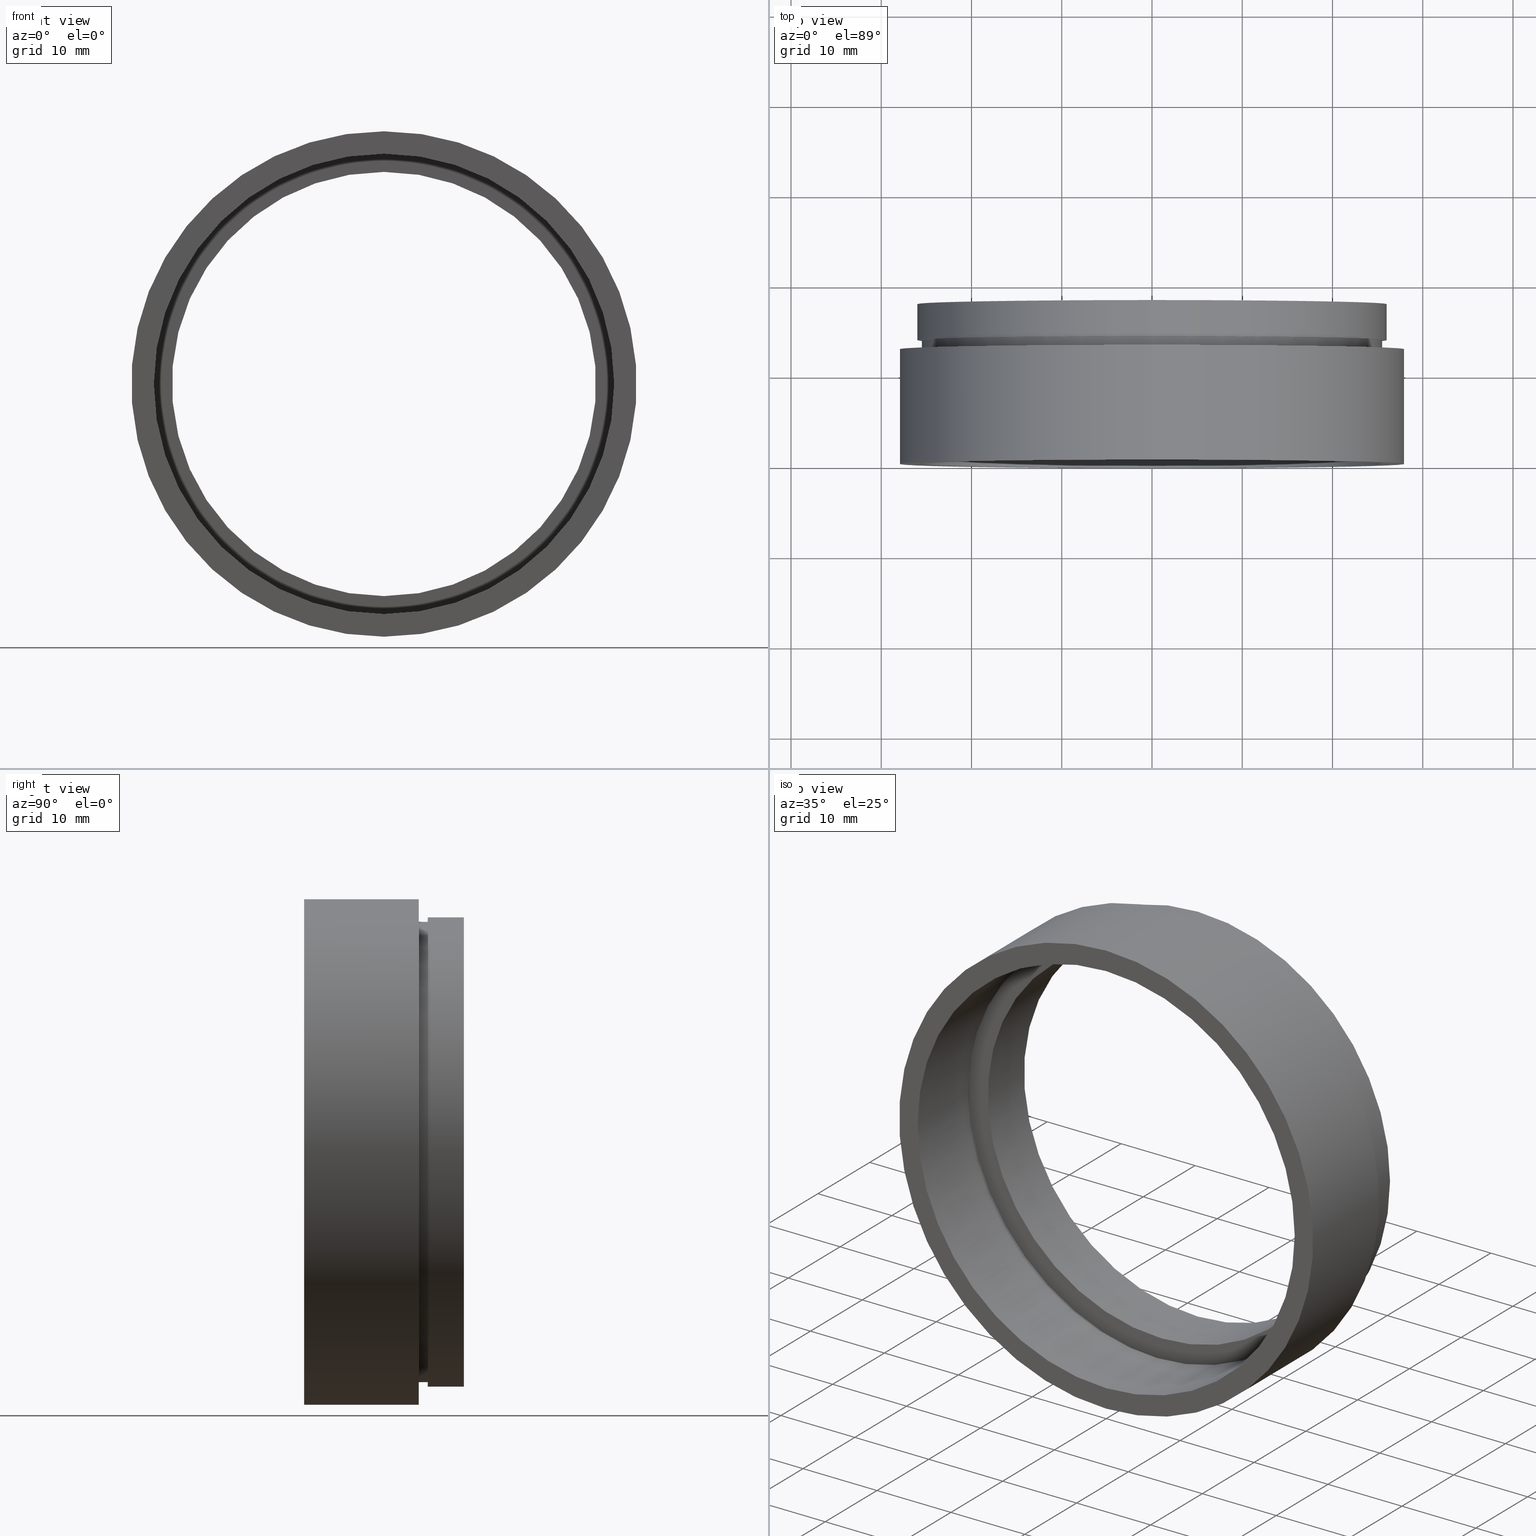
[diagram: canonical four-view strip — front | top / right | iso, engineering-drawing reading convention]
A machine part, canonical four-view strip (front | top / right | iso — engineering-drawing reading convention). The complete STEP part file that produces these views, byte-faithful:
ISO-10303-21;
HEADER;
FILE_DESCRIPTION (( 'STEP AP214' ),
    '1' );
FILE_NAME ('503004.STEP',
    '2019-09-04T05:28:14',
    ( '' ),
    ( '' ),
    'SwSTEP 2.0',
    'SolidWorks 2016',
    '' );
FILE_SCHEMA (( 'AUTOMOTIVE_DESIGN' ));
ENDSEC;

DATA;
#1 = DIRECTION ( 'NONE',  ( -0.0000000000000000000, 1.000000000000000000, -0.0000000000000000000 ) ) ;
#2 = EDGE_LOOP ( 'NONE', ( #331, #401 ) ) ;
#3 = EDGE_LOOP ( 'NONE', ( #9, #328, #159, #293 ) ) ;
#4 = PRODUCT_CONTEXT ( 'NONE', #482, 'mechanical' ) ;
#5 =( NAMED_UNIT ( * ) SI_UNIT ( $, .STERADIAN. ) SOLID_ANGLE_UNIT ( ) );
#6 = EDGE_CURVE ( 'NONE', #441, #82, #513, .T. ) ;
#7 = DIRECTION ( 'NONE',  ( -0.0000000000000000000, 1.000000000000000000, -0.0000000000000000000 ) ) ;
#8 = CARTESIAN_POINT ( 'NONE',  ( 26.00000000000002100, 13.69999999999998700, 0.0000000000000000000 ) ) ;
#9 = ORIENTED_EDGE ( 'NONE', *, *, #363, .F. ) ;
#10 = LINE ( 'NONE', #45, #336 ) ;
#11 = PLANE ( 'NONE',  #37 ) ;
#12 = PRODUCT_DEFINITION_CONTEXT ( 'detailed design', #345, 'design' ) ;
#13 = CIRCLE ( 'NONE', #509, 28.00000000000001800 ) ;
#14 = FILL_AREA_STYLE ('',( #61 ) ) ;
#15 = ORIENTED_EDGE ( 'NONE', *, *, #226, .T. ) ;
#16 = AXIS2_PLACEMENT_3D ( 'NONE', #439, #158, #434 ) ;
#17 = PRESENTATION_STYLE_ASSIGNMENT (( #334 ) ) ;
#18 = AXIS2_PLACEMENT_3D ( 'NONE', #196, #476, #189 ) ;
#19 = DIRECTION ( 'NONE',  ( -0.0000000000000000000, 1.000000000000000000, -0.0000000000000000000 ) ) ;
#20 = EDGE_LOOP ( 'NONE', ( #69, #557 ) ) ;
#21 = CARTESIAN_POINT ( 'NONE',  ( 0.0000000000000000000, -2.775557561562891400E-014, 28.00000000000001800 ) ) ;
#22 = STYLED_ITEM ( 'NONE', ( #425 ), #389 ) ;
#23 = FACE_OUTER_BOUND ( 'NONE', #20, .T. ) ;
#24 = CARTESIAN_POINT ( 'NONE',  ( 0.0000000000000000000, -2.775557561562891400E-014, 0.0000000000000000000 ) ) ;
#25 = ADVANCED_FACE ( 'NONE', ( #474, #383 ), #11, .F. ) ;
#26 = VECTOR ( 'NONE', #475, 1000.000000000000000 ) ;
#27 = DIRECTION ( 'NONE',  ( -0.0000000000000000000, 1.000000000000000000, -0.0000000000000000000 ) ) ;
#28 = VERTEX_POINT ( 'NONE', #428 ) ;
#29 = ADVANCED_FACE ( 'NONE', ( #124 ), #496, .F. ) ;
#30 = ORIENTED_EDGE ( 'NONE', *, *, #153, .F. ) ;
#31 = DIRECTION ( 'NONE',  ( 0.0000000000000000000, -0.0000000000000000000, -1.000000000000000000 ) ) ;
#32 = DIRECTION ( 'NONE',  ( -0.0000000000000000000, 1.000000000000000000, -0.0000000000000000000 ) ) ;
#33 = PRESENTATION_LAYER_ASSIGNMENT (  '', '', ( #569 ) ) ;
#34 = EDGE_CURVE ( 'NONE', #156, #404, #360, .T. ) ;
#35 = CYLINDRICAL_SURFACE ( 'NONE', #18, 25.50000000000001400 ) ;
#36 = DIRECTION ( 'NONE',  ( 0.0000000000000000000, 0.0000000000000000000, 1.000000000000000000 ) ) ;
#37 = AXIS2_PLACEMENT_3D ( 'NONE', #8, #341, #485 ) ;
#38 = CARTESIAN_POINT ( 'NONE',  ( 3.122849337825753000E-015, 9.699999999999986900, -25.50000000000001800 ) ) ;
#39 = ORIENTED_EDGE ( 'NONE', *, *, #221, .T. ) ;
#40 = SURFACE_STYLE_USAGE ( .BOTH. , #176 ) ;
#41 = DIRECTION ( 'NONE',  ( -0.0000000000000000000, 1.000000000000000000, -0.0000000000000000000 ) ) ;
#42 = COLOUR_RGB ( '',1.000000000000000000, 1.000000000000000000, 1.000000000000000000 ) ;
#43 = DIRECTION ( 'NONE',  ( 0.0000000000000000000, -1.000000000000000000, 0.0000000000000000000 ) ) ;
#44 = CIRCLE ( 'NONE', #411, 25.50000000000001800 ) ;
#45 = CARTESIAN_POINT ( 'NONE',  ( 0.0000000000000000000, 161.3761669434274500, 25.50000000000001400 ) ) ;
#46 = EDGE_LOOP ( 'NONE', ( #551, #538 ) ) ;
#47 =( GEOMETRIC_REPRESENTATION_CONTEXT ( 3 ) GLOBAL_UNCERTAINTY_ASSIGNED_CONTEXT ( ( #210 ) ) GLOBAL_UNIT_ASSIGNED_CONTEXT ( ( #572, #245, #381 ) ) REPRESENTATION_CONTEXT ( 'NONE', 'WORKASPACE' ) );
#48 = ORIENTED_EDGE ( 'NONE', *, *, #266, .F. ) ;
#49 = ORIENTED_EDGE ( 'NONE', *, *, #122, .F. ) ;
#50 = ORIENTED_EDGE ( 'NONE', *, *, #368, .T. ) ;
#51 = DIRECTION ( 'NONE',  ( 0.0000000000000000000, 0.0000000000000000000, 1.000000000000000000 ) ) ;
#52 = DIRECTION ( 'NONE',  ( -0.0000000000000000000, 1.000000000000000000, -0.0000000000000000000 ) ) ;
#53 = COLOUR_RGB ( '',1.000000000000000000, 1.000000000000000000, 1.000000000000000000 ) ;
#54 = DIRECTION ( 'NONE',  ( -0.0000000000000000000, 1.000000000000000000, -0.0000000000000000000 ) ) ;
#55 = AXIS2_PLACEMENT_3D ( 'NONE', #552, #125, #602 ) ;
#56 = EDGE_CURVE ( 'NONE', #101, #67, #604, .T. ) ;
#57 = CIRCLE ( 'NONE', #495, 25.50000000000001400 ) ;
#58 =( NAMED_UNIT ( * ) PLANE_ANGLE_UNIT ( ) SI_UNIT ( $, .RADIAN. ) );
#59 = ORIENTED_EDGE ( 'NONE', *, *, #56, .F. ) ;
#60 = CARTESIAN_POINT ( 'NONE',  ( 2.877919977996282300E-015, 161.3761669434274500, -23.50000000000001800 ) ) ;
#61 = FILL_AREA_STYLE_COLOUR ( '', #209 ) ;
#62 = ADVANCED_FACE ( 'NONE', ( #504 ), #354, .T. ) ;
#63 = EDGE_CURVE ( 'NONE', #587, #618, #489, .T. ) ;
#64 = ORIENTED_EDGE ( 'NONE', *, *, #160, .F. ) ;
#65 = ORIENTED_EDGE ( 'NONE', *, *, #314, .F. ) ;
#66 = DIRECTION ( 'NONE',  ( -0.0000000000000000000, 1.000000000000000000, -0.0000000000000000000 ) ) ;
#67 = VERTEX_POINT ( 'NONE', #539 ) ;
#68 = FACE_OUTER_BOUND ( 'NONE', #525, .T. ) ;
#69 = ORIENTED_EDGE ( 'NONE', *, *, #197, .T. ) ;
#70 = VERTEX_POINT ( 'NONE', #359 ) ;
#71 = CARTESIAN_POINT ( 'NONE',  ( 3.122849337825753000E-015, -2.775557561562891400E-014, -25.50000000000001800 ) ) ;
#72 = FILL_AREA_STYLE_COLOUR ( '', #53 ) ;
#73 = FACE_BOUND ( 'NONE', #438, .T. ) ;
#74 = VECTOR ( 'NONE', #211, 1000.000000000000000 ) ;
#75 = PRESENTATION_LAYER_ASSIGNMENT (  '', '', ( #313 ) ) ;
#76 = DIRECTION ( 'NONE',  ( -0.0000000000000000000, 1.000000000000000000, -0.0000000000000000000 ) ) ;
#77 = ORIENTED_EDGE ( 'NONE', *, *, #295, .T. ) ;
#78 = ORIENTED_EDGE ( 'NONE', *, *, #236, .T. ) ;
#79 = DIRECTION ( 'NONE',  ( -0.0000000000000000000, 1.000000000000000000, 0.0000000000000000000 ) ) ;
#80 = VERTEX_POINT ( 'NONE', #592 ) ;
#81 = DIRECTION ( 'NONE',  ( -0.0000000000000000000, 1.000000000000000000, -0.0000000000000000000 ) ) ;
#82 = VERTEX_POINT ( 'NONE', #494 ) ;
#83 = CARTESIAN_POINT ( 'NONE',  ( 0.0000000000000000000, 161.3761669434274500, 0.0000000000000000000 ) ) ;
#84 = VECTOR ( 'NONE', #286, 1000.000000000000000 ) ;
#85 = CARTESIAN_POINT ( 'NONE',  ( 0.0000000000000000000, 9.699999999999986900, 25.50000000000001800 ) ) ;
#86 =( GEOMETRIC_REPRESENTATION_CONTEXT ( 3 ) GLOBAL_UNCERTAINTY_ASSIGNED_CONTEXT ( ( #288 ) ) GLOBAL_UNIT_ASSIGNED_CONTEXT ( ( #232, #570, #5 ) ) REPRESENTATION_CONTEXT ( 'NONE', 'WORKASPACE' ) );
#87 = SURFACE_SIDE_STYLE ('',( #311 ) ) ;
#88 = ADVANCED_FACE ( 'NONE', ( #96 ), #233, .T. ) ;
#89 = EDGE_CURVE ( 'NONE', #587, #404, #353, .T. ) ;
#90 = VERTEX_POINT ( 'NONE', #218 ) ;
#91 = FILL_AREA_STYLE_COLOUR ( '', #261 ) ;
#92 = SURFACE_SIDE_STYLE ('',( #586 ) ) ;
#93 = DIRECTION ( 'NONE',  ( -0.0000000000000000000, 1.000000000000000000, -0.0000000000000000000 ) ) ;
#94 = CARTESIAN_POINT ( 'NONE',  ( 0.0000000000000000000, 10.69999999999998700, 0.0000000000000000000 ) ) ;
#95 = UNCERTAINTY_MEASURE_WITH_UNIT (LENGTH_MEASURE( 1.000000000000000100E-005 ), #262, 'distance_accuracy_value', 'NONE');
#96 = FACE_OUTER_BOUND ( 'NONE', #205, .T. ) ;
#97 = DIRECTION ( 'NONE',  ( 0.0000000000000000000, 0.0000000000000000000, 1.000000000000000000 ) ) ;
#98 = CARTESIAN_POINT ( 'NONE',  ( 0.0000000000000000000, 13.69999999999999000, 0.0000000000000000000 ) ) ;
#99 = FACE_OUTER_BOUND ( 'NONE', #347, .T. ) ;
#100 = CARTESIAN_POINT ( 'NONE',  ( 0.0000000000000000000, 0.0000000000000000000, 0.0000000000000000000 ) ) ;
#101 = VERTEX_POINT ( 'NONE', #21 ) ;
#102 = PRODUCT_DEFINITION ( 'δ֪', '', #543, #12 ) ;
#103 = ORIENTED_EDGE ( 'NONE', *, *, #122, .T. ) ;
#104 = DIRECTION ( 'NONE',  ( 0.0000000000000000000, 0.0000000000000000000, 1.000000000000000000 ) ) ;
#105 = CARTESIAN_POINT ( 'NONE',  ( 0.0000000000000000000, 12.69999999999998900, 0.0000000000000000000 ) ) ;
#106 = AXIS2_PLACEMENT_3D ( 'NONE', #320, #610, #461 ) ;
#107 = CARTESIAN_POINT ( 'NONE',  ( 0.0000000000000000000, 161.3761669434274500, 0.0000000000000000000 ) ) ;
#108 = CIRCLE ( 'NONE', #170, 26.10000000000002300 ) ;
#109 = ORIENTED_EDGE ( 'NONE', *, *, #352, .F. ) ;
#110 = DIRECTION ( 'NONE',  ( -0.0000000000000000000, 1.000000000000000000, -0.0000000000000000000 ) ) ;
#111 = LINE ( 'NONE', #607, #74 ) ;
#112 = VECTOR ( 'NONE', #481, 1000.000000000000000 ) ;
#113 = CIRCLE ( 'NONE', #402, 26.10000000000002300 ) ;
#114 = ORIENTED_EDGE ( 'NONE', *, *, #368, .F. ) ;
#115 = SURFACE_STYLE_USAGE ( .BOTH. , #491 ) ;
#116 = AXIS2_PLACEMENT_3D ( 'NONE', #442, #166, #31 ) ;
#117 = ORIENTED_EDGE ( 'NONE', *, *, #257, .T. ) ;
#118 =( NAMED_UNIT ( * ) PLANE_ANGLE_UNIT ( ) SI_UNIT ( $, .RADIAN. ) );
#119 = PLANE ( 'NONE',  #224 ) ;
#120 = ORIENTED_EDGE ( 'NONE', *, *, #236, .F. ) ;
#121 = AXIS2_PLACEMENT_3D ( 'NONE', #188, #138, #523 ) ;
#122 = EDGE_CURVE ( 'NONE', #542, #90, #123, .T. ) ;
#123 = LINE ( 'NONE', #60, #260 ) ;
#124 = FACE_OUTER_BOUND ( 'NONE', #3, .T. ) ;
#125 = DIRECTION ( 'NONE',  ( -0.0000000000000000000, 1.000000000000000000, -0.0000000000000000000 ) ) ;
#126 = FACE_OUTER_BOUND ( 'NONE', #479, .T. ) ;
#127 = VERTEX_POINT ( 'NONE', #263 ) ;
#128 = VERTEX_POINT ( 'NONE', #71 ) ;
#129 = STYLED_ITEM ( 'NONE', ( #17 ), #540 ) ;
#130 = EDGE_CURVE ( 'NONE', #420, #251, #546, .T. ) ;
#131 = DIRECTION ( 'NONE',  ( -0.0000000000000000000, 1.000000000000000000, -0.0000000000000000000 ) ) ;
#132 = CIRCLE ( 'NONE', #144, 26.00000000000002100 ) ;
#133 =( GEOMETRIC_REPRESENTATION_CONTEXT ( 3 ) GLOBAL_UNCERTAINTY_ASSIGNED_CONTEXT ( ( #95 ) ) GLOBAL_UNIT_ASSIGNED_CONTEXT ( ( #262, #259, #403 ) ) REPRESENTATION_CONTEXT ( 'NONE', 'WORKASPACE' ) );
#134 = EDGE_CURVE ( 'NONE', #251, #420, #502, .T. ) ;
#135 = DIRECTION ( 'NONE',  ( 0.0000000000000000000, 0.0000000000000000000, 1.000000000000000000 ) ) ;
#136 = ADVANCED_FACE ( 'NONE', ( #378 ), #603, .T. ) ;
#137 = DIRECTION ( 'NONE',  ( 0.0000000000000000000, 0.0000000000000000000, 1.000000000000000000 ) ) ;
#138 = DIRECTION ( 'NONE',  ( -0.0000000000000000000, 1.000000000000000000, -0.0000000000000000000 ) ) ;
#139 = CARTESIAN_POINT ( 'NONE',  ( 3.122849337825752600E-015, 161.3761669434274500, -25.50000000000001400 ) ) ;
#140 = CARTESIAN_POINT ( 'NONE',  ( 0.0000000000000000000, 161.3761669434274500, 0.0000000000000000000 ) ) ;
#141 = ORIENTED_EDGE ( 'NONE', *, *, #547, .T. ) ;
#142 = DIRECTION ( 'NONE',  ( -0.0000000000000000000, 1.000000000000000000, -0.0000000000000000000 ) ) ;
#143 = CARTESIAN_POINT ( 'NONE',  ( 3.122849337825753000E-015, 161.3761669434274500, -25.50000000000001800 ) ) ;
#144 = AXIS2_PLACEMENT_3D ( 'NONE', #98, #621, #239 ) ;
#145 = DIRECTION ( 'NONE',  ( 0.0000000000000000000, 0.0000000000000000000, 1.000000000000000000 ) ) ;
#146 = CIRCLE ( 'NONE', #423, 25.50000000000001400 ) ;
#147 = DIRECTION ( 'NONE',  ( 0.0000000000000000000, 0.0000000000000000000, 1.000000000000000000 ) ) ;
#148 = ORIENTED_EDGE ( 'NONE', *, *, #471, .T. ) ;
#149 = UNCERTAINTY_MEASURE_WITH_UNIT (LENGTH_MEASURE( 1.000000000000000100E-005 ), #556, 'distance_accuracy_value', 'NONE');
#150 = CARTESIAN_POINT ( 'NONE',  ( 0.0000000000000000000, -2.775557561562891400E-014, 0.0000000000000000000 ) ) ;
#151 = STYLED_ITEM ( 'NONE', ( #598 ), #493 ) ;
#152 = VECTOR ( 'NONE', #27, 1000.000000000000000 ) ;
#153 = EDGE_CURVE ( 'NONE', #618, #156, #472, .T. ) ;
#154 = LINE ( 'NONE', #283, #26 ) ;
#155 = MECHANICAL_DESIGN_GEOMETRIC_PRESENTATION_REPRESENTATION (  '', ( #129 ), #580 ) ;
#156 = VERTEX_POINT ( 'NONE', #544 ) ;
#157 = EDGE_CURVE ( 'NONE', #28, #101, #520, .T. ) ;
#158 = DIRECTION ( 'NONE',  ( -0.0000000000000000000, 1.000000000000000000, -0.0000000000000000000 ) ) ;
#159 = ORIENTED_EDGE ( 'NONE', *, *, #134, .T. ) ;
#160 = EDGE_CURVE ( 'NONE', #80, #70, #111, .T. ) ;
#161 = SURFACE_SIDE_STYLE ('',( #247 ) ) ;
#162 = CIRCLE ( 'NONE', #396, 25.50000000000001800 ) ;
#163 = LINE ( 'NONE', #139, #390 ) ;
#164 = CARTESIAN_POINT ( 'NONE',  ( 0.0000000000000000000, 9.699999999999986900, 0.0000000000000000000 ) ) ;
#165 = EDGE_LOOP ( 'NONE', ( #78, #50 ) ) ;
#166 = DIRECTION ( 'NONE',  ( 0.0000000000000000000, -1.000000000000000000, 0.0000000000000000000 ) ) ;
#167 = ADVANCED_FACE ( 'NONE', ( #398, #23 ), #267, .F. ) ;
#168 = CARTESIAN_POINT ( 'NONE',  ( 0.0000000000000000000, 10.69999999999998700, 0.0000000000000000000 ) ) ;
#169 = ORIENTED_EDGE ( 'NONE', *, *, #153, .T. ) ;
#170 = AXIS2_PLACEMENT_3D ( 'NONE', #410, #460, #234 ) ;
#171 = FILL_AREA_STYLE_COLOUR ( '', #297 ) ;
#172 = ADVANCED_FACE ( 'NONE', ( #126, #249 ), #119, .F. ) ;
#173 = FILL_AREA_STYLE ('',( #171 ) ) ;
#174 = CLOSED_SHELL ( 'NONE', ( #399, #29, #511, #564, #136, #493, #540, #501, #88, #25, #62, #301, #608, #277, #326, #167, #505, #172 ) ) ;
#175 = ORIENTED_EDGE ( 'NONE', *, *, #257, .F. ) ;
#176 = SURFACE_SIDE_STYLE ('',( #417 ) ) ;
#177 = CARTESIAN_POINT ( 'NONE',  ( 0.0000000000000000000, 17.69999999999999200, 0.0000000000000000000 ) ) ;
#178 = CARTESIAN_POINT ( 'NONE',  ( 0.0000000000000000000, 161.3761669434274500, 0.0000000000000000000 ) ) ;
#179 = CARTESIAN_POINT ( 'NONE',  ( 3.429011037612590900E-015, 161.3761669434274500, -28.00000000000001800 ) ) ;
#180 =( GEOMETRIC_REPRESENTATION_CONTEXT ( 3 ) GLOBAL_UNCERTAINTY_ASSIGNED_CONTEXT ( ( #256 ) ) GLOBAL_UNIT_ASSIGNED_CONTEXT ( ( #388, #58, #193 ) ) REPRESENTATION_CONTEXT ( 'NONE', 'WORKASPACE' ) );
#181 = SURFACE_STYLE_USAGE ( .BOTH. , #87 ) ;
#182 = CIRCLE ( 'NONE', #250, 23.50000000000001800 ) ;
#183 = EDGE_CURVE ( 'NONE', #82, #409, #565, .T. ) ;
#184 = DIRECTION ( 'NONE',  ( 0.0000000000000000000, 0.0000000000000000000, 1.000000000000000000 ) ) ;
#185 = ORIENTED_EDGE ( 'NONE', *, *, #157, .T. ) ;
#186 = FILL_AREA_STYLE_COLOUR ( '', #555 ) ;
#187 = AXIS2_PLACEMENT_3D ( 'NONE', #306, #498, #207 ) ;
#188 = CARTESIAN_POINT ( 'NONE',  ( 0.0000000000000000000, 17.69999999999999200, 0.0000000000000000000 ) ) ;
#189 = DIRECTION ( 'NONE',  ( 0.0000000000000000000, 0.0000000000000000000, 1.000000000000000000 ) ) ;
#190 = EDGE_LOOP ( 'NONE', ( #380, #230 ) ) ;
#191 = CIRCLE ( 'NONE', #545, 25.50000000000001800 ) ;
#192 =( NAMED_UNIT ( * ) SI_UNIT ( $, .STERADIAN. ) SOLID_ANGLE_UNIT ( ) );
#193 =( NAMED_UNIT ( * ) SI_UNIT ( $, .STERADIAN. ) SOLID_ANGLE_UNIT ( ) );
#194 = ORIENTED_EDGE ( 'NONE', *, *, #537, .T. ) ;
#195 = EDGE_LOOP ( 'NONE', ( #238, #199 ) ) ;
#196 = CARTESIAN_POINT ( 'NONE',  ( 0.0000000000000000000, 161.3761669434274500, 0.0000000000000000000 ) ) ;
#197 = EDGE_CURVE ( 'NONE', #431, #441, #113, .T. ) ;
#198 = SURFACE_STYLE_USAGE ( .BOTH. , #429 ) ;
#199 = ORIENTED_EDGE ( 'NONE', *, *, #157, .F. ) ;
#200 = CYLINDRICAL_SURFACE ( 'NONE', #290, 28.00000000000001800 ) ;
#201 = ORIENTED_EDGE ( 'NONE', *, *, #34, .F. ) ;
#202 =( NAMED_UNIT ( * ) SI_UNIT ( $, .STERADIAN. ) SOLID_ANGLE_UNIT ( ) );
#203 = VECTOR ( 'NONE', #463, 1000.000000000000000 ) ;
#204 = MECHANICAL_DESIGN_GEOMETRIC_PRESENTATION_REPRESENTATION (  '', ( #151 ), #278 ) ;
#205 = EDGE_LOOP ( 'NONE', ( #273, #611, #169, #219 ) ) ;
#206 =( LENGTH_UNIT ( ) NAMED_UNIT ( * ) SI_UNIT ( .MILLI., .METRE. ) );
#207 = DIRECTION ( 'NONE',  ( 0.0000000000000000000, 0.0000000000000000000, 1.000000000000000000 ) ) ;
#208 = AXIS2_PLACEMENT_3D ( 'NONE', #340, #289, #51 ) ;
#209 = COLOUR_RGB ( '',1.000000000000000000, 1.000000000000000000, 1.000000000000000000 ) ;
#210 = UNCERTAINTY_MEASURE_WITH_UNIT (LENGTH_MEASURE( 1.000000000000000100E-005 ), #572, 'distance_accuracy_value', 'NONE');
#211 = DIRECTION ( 'NONE',  ( -0.0000000000000000000, 1.000000000000000000, -0.0000000000000000000 ) ) ;
#212 = MECHANICAL_DESIGN_GEOMETRIC_PRESENTATION_REPRESENTATION (  '', ( #313 ), #458 ) ;
#213 = CARTESIAN_POINT ( 'NONE',  ( 3.184081677783120200E-015, 161.3761669434274500, -26.00000000000001800 ) ) ;
#214 = AXIS2_PLACEMENT_3D ( 'NONE', #107, #110, #384 ) ;
#215 = CARTESIAN_POINT ( 'NONE',  ( 0.0000000000000000000, 12.69999999999998900, 25.50000000000001400 ) ) ;
#216 = ORIENTED_EDGE ( 'NONE', *, *, #130, .T. ) ;
#217 = FACE_OUTER_BOUND ( 'NONE', #457, .T. ) ;
#218 = CARTESIAN_POINT ( 'NONE',  ( 2.877919977996282300E-015, 17.69999999999999200, -23.50000000000001800 ) ) ;
#219 = ORIENTED_EDGE ( 'NONE', *, *, #337, .F. ) ;
#220 = CARTESIAN_POINT ( 'NONE',  ( 28.00000000000001800, -1.408179048343280700E-014, 0.0000000000000000000 ) ) ;
#221 = EDGE_CURVE ( 'NONE', #90, #70, #536, .T. ) ;
#222 = DIRECTION ( 'NONE',  ( 0.0000000000000000000, 0.0000000000000000000, 1.000000000000000000 ) ) ;
#223 =( NAMED_UNIT ( * ) SI_UNIT ( $, .STERADIAN. ) SOLID_ANGLE_UNIT ( ) );
#224 = AXIS2_PLACEMENT_3D ( 'NONE', #601, #309, #308 ) ;
#225 = DIRECTION ( 'NONE',  ( 0.0000000000000000000, 0.0000000000000000000, 1.000000000000000000 ) ) ;
#226 = EDGE_CURVE ( 'NONE', #409, #82, #575, .T. ) ;
#227 = CARTESIAN_POINT ( 'NONE',  ( 0.0000000000000000000, 161.3761669434274500, 0.0000000000000000000 ) ) ;
#228 = DIRECTION ( 'NONE',  ( -0.0000000000000000000, 1.000000000000000000, -0.0000000000000000000 ) ) ;
#229 = VERTEX_POINT ( 'NONE', #215 ) ;
#230 = ORIENTED_EDGE ( 'NONE', *, *, #337, .T. ) ;
#231 = PLANE ( 'NONE',  #614 ) ;
#232 =( LENGTH_UNIT ( ) NAMED_UNIT ( * ) SI_UNIT ( .MILLI., .METRE. ) );
#233 = CYLINDRICAL_SURFACE ( 'NONE', #187, 26.00000000000001800 ) ;
#234 = DIRECTION ( 'NONE',  ( 0.0000000000000000000, 0.0000000000000000000, 1.000000000000000000 ) ) ;
#235 = LINE ( 'NONE', #179, #303 ) ;
#236 = EDGE_CURVE ( 'NONE', #80, #542, #549, .T. ) ;
#237 =( NAMED_UNIT ( * ) PLANE_ANGLE_UNIT ( ) SI_UNIT ( $, .RADIAN. ) );
#238 = ORIENTED_EDGE ( 'NONE', *, *, #253, .F. ) ;
#239 = DIRECTION ( 'NONE',  ( 0.0000000000000000000, 0.0000000000000000000, 1.000000000000000000 ) ) ;
#240 = EDGE_LOOP ( 'NONE', ( #492, #194, #48, #499 ) ) ;
#241 = SURFACE_STYLE_USAGE ( .BOTH. , #533 ) ;
#242 = EDGE_LOOP ( 'NONE', ( #456, #305 ) ) ;
#243 = CIRCLE ( 'NONE', #534, 28.00000000000001800 ) ;
#244 = ORIENTED_EDGE ( 'NONE', *, *, #400, .T. ) ;
#245 =( NAMED_UNIT ( * ) PLANE_ANGLE_UNIT ( ) SI_UNIT ( $, .RADIAN. ) );
#246 = AXIS2_PLACEMENT_3D ( 'NONE', #140, #623, #574 ) ;
#247 = SURFACE_STYLE_FILL_AREA ( #448 ) ;
#248 = ORIENTED_EDGE ( 'NONE', *, *, #266, .T. ) ;
#249 = FACE_BOUND ( 'NONE', #165, .T. ) ;
#250 = AXIS2_PLACEMENT_3D ( 'NONE', #94, #1, #335 ) ;
#251 = VERTEX_POINT ( 'NONE', #38 ) ;
#252 = AXIS2_PLACEMENT_3D ( 'NONE', #279, #131, #615 ) ;
#253 = EDGE_CURVE ( 'NONE', #101, #28, #13, .T. ) ;
#254 = CYLINDRICAL_SURFACE ( 'NONE', #246, 26.10000000000001900 ) ;
#255 = AXIS2_PLACEMENT_3D ( 'NONE', #168, #365, #510 ) ;
#256 = UNCERTAINTY_MEASURE_WITH_UNIT (LENGTH_MEASURE( 1.000000000000000100E-005 ), #388, 'distance_accuracy_value', 'NONE');
#257 = EDGE_CURVE ( 'NONE', #70, #90, #506, .T. ) ;
#258 = EDGE_LOOP ( 'NONE', ( #358, #321, #201, #30 ) ) ;
#259 =( NAMED_UNIT ( * ) PLANE_ANGLE_UNIT ( ) SI_UNIT ( $, .RADIAN. ) );
#260 = VECTOR ( 'NONE', #298, 1000.000000000000000 ) ;
#261 = COLOUR_RGB ( '',1.000000000000000000, 1.000000000000000000, 1.000000000000000000 ) ;
#262 =( LENGTH_UNIT ( ) NAMED_UNIT ( * ) SI_UNIT ( .MILLI., .METRE. ) );
#263 = CARTESIAN_POINT ( 'NONE',  ( 3.122849337825752600E-015, 12.69999999999998900, -25.50000000000001400 ) ) ;
#264 = ORIENTED_EDGE ( 'NONE', *, *, #537, .F. ) ;
#265 = AXIS2_PLACEMENT_3D ( 'NONE', #100, #285, #579 ) ;
#266 = EDGE_CURVE ( 'NONE', #287, #588, #44, .T. ) ;
#267 = PLANE ( 'NONE',  #116 ) ;
#268 = CARTESIAN_POINT ( 'NONE',  ( 0.0000000000000000000, 10.69999999999998700, 0.0000000000000000000 ) ) ;
#269 = ORIENTED_EDGE ( 'NONE', *, *, #594, .F. ) ;
#270 = CYLINDRICAL_SURFACE ( 'NONE', #517, 25.50000000000001800 ) ;
#271 = CARTESIAN_POINT ( 'NONE',  ( 25.50000000000001400, 12.69999999999998500, 0.0000000000000000000 ) ) ;
#272 = SURFACE_SIDE_STYLE ('',( #451 ) ) ;
#273 = ORIENTED_EDGE ( 'NONE', *, *, #89, .F. ) ;
#274 = DIRECTION ( 'NONE',  ( 0.0000000000000000000, -0.0000000000000000000, -1.000000000000000000 ) ) ;
#275 = CARTESIAN_POINT ( 'NONE',  ( 0.0000000000000000000, -2.775557561562891400E-014, 25.50000000000001800 ) ) ;
#276 = CARTESIAN_POINT ( 'NONE',  ( 0.0000000000000000000, 13.69999999999999000, 0.0000000000000000000 ) ) ;
#277 = ADVANCED_FACE ( 'NONE', ( #357, #490 ), #515, .F. ) ;
#278 =( GEOMETRIC_REPRESENTATION_CONTEXT ( 3 ) GLOBAL_UNCERTAINTY_ASSIGNED_CONTEXT ( ( #512 ) ) GLOBAL_UNIT_ASSIGNED_CONTEXT ( ( #327, #465, #518 ) ) REPRESENTATION_CONTEXT ( 'NONE', 'WORKASPACE' ) );
#279 = CARTESIAN_POINT ( 'NONE',  ( 0.0000000000000000000, 161.3761669434274500, 0.0000000000000000000 ) ) ;
#280 = FACE_OUTER_BOUND ( 'NONE', #284, .T. ) ;
#281 = CARTESIAN_POINT ( 'NONE',  ( 0.0000000000000000000, 161.3761669434274500, 0.0000000000000000000 ) ) ;
#282 = AXIS2_PLACEMENT_3D ( 'NONE', #397, #507, #316 ) ;
#283 = CARTESIAN_POINT ( 'NONE',  ( 0.0000000000000000000, 161.3761669434274500, 25.50000000000001800 ) ) ;
#284 = EDGE_LOOP ( 'NONE', ( #49, #120, #466, #117 ) ) ;
#285 = DIRECTION ( 'NONE',  ( 0.0000000000000000000, 0.0000000000000000000, 1.000000000000000000 ) ) ;
#286 = DIRECTION ( 'NONE',  ( -0.0000000000000000000, 1.000000000000000000, -0.0000000000000000000 ) ) ;
#287 = VERTEX_POINT ( 'NONE', #519 ) ;
#288 = UNCERTAINTY_MEASURE_WITH_UNIT (LENGTH_MEASURE( 1.000000000000000100E-005 ), #232, 'distance_accuracy_value', 'NONE');
#289 = DIRECTION ( 'NONE',  ( -0.0000000000000000000, 1.000000000000000000, -0.0000000000000000000 ) ) ;
#290 = AXIS2_PLACEMENT_3D ( 'NONE', #483, #7, #104 ) ;
#291 = DIRECTION ( 'NONE',  ( -0.0000000000000000000, 1.000000000000000000, -0.0000000000000000000 ) ) ;
#292 = CARTESIAN_POINT ( 'NONE',  ( 0.0000000000000000000, 13.69999999999999000, 26.00000000000002100 ) ) ;
#293 = ORIENTED_EDGE ( 'NONE', *, *, #387, .F. ) ;
#294 = DIRECTION ( 'NONE',  ( 0.0000000000000000000, 0.0000000000000000000, 1.000000000000000000 ) ) ;
#295 = EDGE_CURVE ( 'NONE', #28, #578, #235, .T. ) ;
#296 = CARTESIAN_POINT ( 'NONE',  ( 0.0000000000000000000, 17.69999999999999200, 0.0000000000000000000 ) ) ;
#297 = COLOUR_RGB ( '',1.000000000000000000, 1.000000000000000000, 1.000000000000000000 ) ;
#298 = DIRECTION ( 'NONE',  ( -0.0000000000000000000, 1.000000000000000000, -0.0000000000000000000 ) ) ;
#299 =( GEOMETRIC_REPRESENTATION_CONTEXT ( 3 ) GLOBAL_UNCERTAINTY_ASSIGNED_CONTEXT ( ( #605 ) ) GLOBAL_UNIT_ASSIGNED_CONTEXT ( ( #526, #237, #192 ) ) REPRESENTATION_CONTEXT ( 'NONE', 'WORKASPACE' ) );
#300 = EDGE_CURVE ( 'NONE', #588, #287, #367, .T. ) ;
#301 = ADVANCED_FACE ( 'NONE', ( #445, #418 ), #514, .F. ) ;
#302 = ORIENTED_EDGE ( 'NONE', *, *, #6, .T. ) ;
#303 = VECTOR ( 'NONE', #406, 1000.000000000000000 ) ;
#304 = MECHANICAL_DESIGN_GEOMETRIC_PRESENTATION_REPRESENTATION (  '', ( #413 ), #180 ) ;
#305 = ORIENTED_EDGE ( 'NONE', *, *, #363, .T. ) ;
#306 = CARTESIAN_POINT ( 'NONE',  ( 0.0000000000000000000, 161.3761669434274500, 0.0000000000000000000 ) ) ;
#307 = EDGE_LOOP ( 'NONE', ( #109, #269, #508, #216 ) ) ;
#308 = DIRECTION ( 'NONE',  ( 0.0000000000000000000, 0.0000000000000000000, 1.000000000000000000 ) ) ;
#309 = DIRECTION ( 'NONE',  ( -0.0000000000000000000, 1.000000000000000000, 0.0000000000000000000 ) ) ;
#310 = CYLINDRICAL_SURFACE ( 'NONE', #432, 28.00000000000001800 ) ;
#311 = SURFACE_STYLE_FILL_AREA ( #173 ) ;
#312 = CARTESIAN_POINT ( 'NONE',  ( 0.0000000000000000000, 161.3761669434274500, 26.00000000000001800 ) ) ;
#313 = STYLED_ITEM ( 'NONE', ( #324 ), #88 ) ;
#314 = EDGE_CURVE ( 'NONE', #127, #229, #57, .T. ) ;
#315 = AXIS2_PLACEMENT_3D ( 'NONE', #296, #52, #535 ) ;
#316 = DIRECTION ( 'NONE',  ( 0.0000000000000000000, 0.0000000000000000000, 1.000000000000000000 ) ) ;
#317 = FACE_OUTER_BOUND ( 'NONE', #240, .T. ) ;
#318 = CARTESIAN_POINT ( 'NONE',  ( 0.0000000000000000000, -2.775557561562891400E-014, 0.0000000000000000000 ) ) ;
#319 = LINE ( 'NONE', #143, #84 ) ;
#320 = CARTESIAN_POINT ( 'NONE',  ( 0.0000000000000000000, 17.69999999999999200, 0.0000000000000000000 ) ) ;
#321 = ORIENTED_EDGE ( 'NONE', *, *, #89, .T. ) ;
#322 = AXIS2_PLACEMENT_3D ( 'NONE', #271, #323, #274 ) ;
#323 = DIRECTION ( 'NONE',  ( 0.0000000000000000000, -1.000000000000000000, 0.0000000000000000000 ) ) ;
#324 = PRESENTATION_STYLE_ASSIGNMENT (( #115 ) ) ;
#325 = CARTESIAN_POINT ( 'NONE',  ( 0.0000000000000000000, 9.699999999999986900, 26.10000000000002300 ) ) ;
#326 = ADVANCED_FACE ( 'NONE', ( #430 ), #270, .F. ) ;
#327 =( LENGTH_UNIT ( ) NAMED_UNIT ( * ) SI_UNIT ( .MILLI., .METRE. ) );
#328 = ORIENTED_EDGE ( 'NONE', *, *, #352, .T. ) ;
#329 = DIRECTION ( 'NONE',  ( 0.0000000000000000000, 0.0000000000000000000, 1.000000000000000000 ) ) ;
#330 = PRODUCT_DEFINITION_SHAPE ( 'NONE', 'NONE',  #102 ) ;
#331 = ORIENTED_EDGE ( 'NONE', *, *, #130, .F. ) ;
#332 = FILL_AREA_STYLE_COLOUR ( '', #606 ) ;
#333 = DIRECTION ( 'NONE',  ( 0.0000000000000000000, 0.0000000000000000000, 1.000000000000000000 ) ) ;
#334 = SURFACE_STYLE_USAGE ( .BOTH. , #272 ) ;
#335 = DIRECTION ( 'NONE',  ( 0.0000000000000000000, 0.0000000000000000000, 1.000000000000000000 ) ) ;
#336 = VECTOR ( 'NONE', #566, 1000.000000000000000 ) ;
#337 = EDGE_CURVE ( 'NONE', #404, #156, #591, .T. ) ;
#338 = PRESENTATION_STYLE_ASSIGNMENT (( #181 ) ) ;
#339 = UNCERTAINTY_MEASURE_WITH_UNIT (LENGTH_MEASURE( 1.000000000000000100E-005 ), #206, 'distance_accuracy_value', 'NONE');
#340 = CARTESIAN_POINT ( 'NONE',  ( 0.0000000000000000000, 12.69999999999998900, 0.0000000000000000000 ) ) ;
#341 = DIRECTION ( 'NONE',  ( -0.0000000000000000000, 1.000000000000000000, 0.0000000000000000000 ) ) ;
#342 = ORIENTED_EDGE ( 'NONE', *, *, #454, .F. ) ;
#343 = CARTESIAN_POINT ( 'NONE',  ( 2.877919977996282300E-015, 10.69999999999998700, -23.50000000000001800 ) ) ;
#344 = AXIS2_PLACEMENT_3D ( 'NONE', #164, #366, #503 ) ;
#345 = APPLICATION_CONTEXT ( 'automotive_design' ) ;
#346 = FILL_AREA_STYLE ('',( #532 ) ) ;
#347 = EDGE_LOOP ( 'NONE', ( #342, #302, #558, #369 ) ) ;
#348 = DIRECTION ( 'NONE',  ( -0.0000000000000000000, 1.000000000000000000, -0.0000000000000000000 ) ) ;
#349 = FACE_OUTER_BOUND ( 'NONE', #462, .T. ) ;
#350 = CARTESIAN_POINT ( 'NONE',  ( 3.196328145774594300E-015, 161.3761669434274500, -26.10000000000001900 ) ) ;
#351 = AXIS2_PLACEMENT_3D ( 'NONE', #24, #550, #452 ) ;
#352 = EDGE_CURVE ( 'NONE', #128, #251, #319, .T. ) ;
#353 = LINE ( 'NONE', #213, #414 ) ;
#354 = CYLINDRICAL_SURFACE ( 'NONE', #214, 25.50000000000001400 ) ;
#355 = AXIS2_PLACEMENT_3D ( 'NONE', #268, #32, #416 ) ;
#356 = CYLINDRICAL_SURFACE ( 'NONE', #252, 23.50000000000001800 ) ;
#357 = FACE_OUTER_BOUND ( 'NONE', #195, .T. ) ;
#358 = ORIENTED_EDGE ( 'NONE', *, *, #392, .T. ) ;
#359 = CARTESIAN_POINT ( 'NONE',  ( 0.0000000000000000000, 17.69999999999999200, 23.50000000000001800 ) ) ;
#360 = CIRCLE ( 'NONE', #315, 26.00000000000001800 ) ;
#361 = CARTESIAN_POINT ( 'NONE',  ( 0.0000000000000000000, 9.699999999999986900, 0.0000000000000000000 ) ) ;
#362 = MECHANICAL_DESIGN_GEOMETRIC_PRESENTATION_REPRESENTATION (  '', ( #371 ), #133 ) ;
#363 = EDGE_CURVE ( 'NONE', #128, #531, #191, .T. ) ;
#364 = ORIENTED_EDGE ( 'NONE', *, *, #300, .T. ) ;
#365 = DIRECTION ( 'NONE',  ( -0.0000000000000000000, 1.000000000000000000, -0.0000000000000000000 ) ) ;
#366 = DIRECTION ( 'NONE',  ( -0.0000000000000000000, 1.000000000000000000, -0.0000000000000000000 ) ) ;
#367 = CIRCLE ( 'NONE', #443, 25.50000000000001800 ) ;
#368 = EDGE_CURVE ( 'NONE', #542, #80, #182, .T. ) ;
#369 = ORIENTED_EDGE ( 'NONE', *, *, #471, .F. ) ;
#370 = CARTESIAN_POINT ( 'NONE',  ( 0.0000000000000000000, 12.69999999999998900, 0.0000000000000000000 ) ) ;
#371 = STYLED_ITEM ( 'NONE', ( #449 ), #136 ) ;
#372 = CARTESIAN_POINT ( 'NONE',  ( 0.0000000000000000000, 10.69999999999998700, 0.0000000000000000000 ) ) ;
#373 = DIRECTION ( 'NONE',  ( 0.0000000000000000000, 0.0000000000000000000, 1.000000000000000000 ) ) ;
#374 = PRODUCT_RELATED_PRODUCT_CATEGORY ( 'part', '', ( #453 ) ) ;
#375 = EDGE_LOOP ( 'NONE', ( #553, #185, #426, #468 ) ) ;
#376 = DIRECTION ( 'NONE',  ( 0.0000000000000000000, -0.0000000000000000000, -1.000000000000000000 ) ) ;
#377 = FILL_AREA_STYLE ('',( #186 ) ) ;
#378 = FACE_OUTER_BOUND ( 'NONE', #258, .T. ) ;
#379 = SURFACE_STYLE_FILL_AREA ( #14 ) ;
#380 = ORIENTED_EDGE ( 'NONE', *, *, #34, .T. ) ;
#381 =( NAMED_UNIT ( * ) SI_UNIT ( $, .STERADIAN. ) SOLID_ANGLE_UNIT ( ) );
#382 = MECHANICAL_DESIGN_GEOMETRIC_PRESENTATION_REPRESENTATION (  '', ( #569 ), #47 ) ;
#383 = FACE_BOUND ( 'NONE', #599, .T. ) ;
#384 = DIRECTION ( 'NONE',  ( 0.0000000000000000000, 0.0000000000000000000, 1.000000000000000000 ) ) ;
#385 = FILL_AREA_STYLE_COLOUR ( '', #42 ) ;
#386 =( GEOMETRIC_REPRESENTATION_CONTEXT ( 3 ) GLOBAL_UNCERTAINTY_ASSIGNED_CONTEXT ( ( #149 ) ) GLOBAL_UNIT_ASSIGNED_CONTEXT ( ( #556, #612, #560 ) ) REPRESENTATION_CONTEXT ( 'NONE', 'WORKASPACE' ) );
#387 = EDGE_CURVE ( 'NONE', #531, #420, #154, .T. ) ;
#388 =( LENGTH_UNIT ( ) NAMED_UNIT ( * ) SI_UNIT ( .MILLI., .METRE. ) );
#389 = MANIFOLD_SOLID_BREP ( '��ת1', #174 ) ;
#390 = VECTOR ( 'NONE', #473, 1000.000000000000000 ) ;
#391 = ORIENTED_EDGE ( 'NONE', *, *, #300, .F. ) ;
#392 = EDGE_CURVE ( 'NONE', #618, #587, #132, .T. ) ;
#393 = ORIENTED_EDGE ( 'NONE', *, *, #221, .F. ) ;
#394 = AXIS2_PLACEMENT_3D ( 'NONE', #372, #228, #412 ) ;
#395 = ORIENTED_EDGE ( 'NONE', *, *, #253, .T. ) ;
#396 = AXIS2_PLACEMENT_3D ( 'NONE', #150, #348, #145 ) ;
#397 = CARTESIAN_POINT ( 'NONE',  ( 0.0000000000000000000, 9.699999999999986900, 0.0000000000000000000 ) ) ;
#398 = FACE_BOUND ( 'NONE', #2, .T. ) ;
#399 = ADVANCED_FACE ( 'NONE', ( #99 ), #254, .F. ) ;
#400 = EDGE_CURVE ( 'NONE', #229, #287, #10, .T. ) ;
#401 = ORIENTED_EDGE ( 'NONE', *, *, #134, .F. ) ;
#402 = AXIS2_PLACEMENT_3D ( 'NONE', #361, #66, #135 ) ;
#403 =( NAMED_UNIT ( * ) SI_UNIT ( $, .STERADIAN. ) SOLID_ANGLE_UNIT ( ) );
#404 = VERTEX_POINT ( 'NONE', #469 ) ;
#405 = FACE_OUTER_BOUND ( 'NONE', #375, .T. ) ;
#406 = DIRECTION ( 'NONE',  ( -0.0000000000000000000, 1.000000000000000000, -0.0000000000000000000 ) ) ;
#407 = EDGE_LOOP ( 'NONE', ( #408, #141 ) ) ;
#408 = ORIENTED_EDGE ( 'NONE', *, *, #620, .T. ) ;
#409 = VERTEX_POINT ( 'NONE', #478 ) ;
#410 = CARTESIAN_POINT ( 'NONE',  ( 0.0000000000000000000, 9.699999999999986900, 0.0000000000000000000 ) ) ;
#411 = AXIS2_PLACEMENT_3D ( 'NONE', #276, #76, #222 ) ;
#412 = DIRECTION ( 'NONE',  ( 0.0000000000000000000, 0.0000000000000000000, 1.000000000000000000 ) ) ;
#413 = STYLED_ITEM ( 'NONE', ( #450 ), #29 ) ;
#414 = VECTOR ( 'NONE', #19, 1000.000000000000000 ) ;
#415 = PRESENTATION_STYLE_ASSIGNMENT (( #241 ) ) ;
#416 = DIRECTION ( 'NONE',  ( 0.0000000000000000000, 0.0000000000000000000, 1.000000000000000000 ) ) ;
#417 = SURFACE_STYLE_FILL_AREA ( #568 ) ;
#418 = FACE_OUTER_BOUND ( 'NONE', #407, .T. ) ;
#419 = CARTESIAN_POINT ( 'NONE',  ( 3.196328145774595100E-015, 9.699999999999986900, -26.10000000000002600 ) ) ;
#420 = VERTEX_POINT ( 'NONE', #85 ) ;
#421 = DIRECTION ( 'NONE',  ( -0.0000000000000000000, 1.000000000000000000, -0.0000000000000000000 ) ) ;
#422 = CARTESIAN_POINT ( 'NONE',  ( 3.429011037612590900E-015, 12.69999999999998900, -28.00000000000001800 ) ) ;
#423 = AXIS2_PLACEMENT_3D ( 'NONE', #480, #142, #97 ) ;
#424 = CARTESIAN_POINT ( 'NONE',  ( 3.184081677783121000E-015, 13.69999999999999000, -26.00000000000002100 ) ) ;
#425 = PRESENTATION_STYLE_ASSIGNMENT (( #571 ) ) ;
#426 = ORIENTED_EDGE ( 'NONE', *, *, #56, .T. ) ;
#427 = ORIENTED_EDGE ( 'NONE', *, *, #183, .F. ) ;
#428 = CARTESIAN_POINT ( 'NONE',  ( 3.429011037612590900E-015, -2.775557561562891400E-014, -28.00000000000001800 ) ) ;
#429 = SURFACE_SIDE_STYLE ('',( #582 ) ) ;
#430 = FACE_OUTER_BOUND ( 'NONE', #307, .T. ) ;
#431 = VERTEX_POINT ( 'NONE', #325 ) ;
#432 = AXIS2_PLACEMENT_3D ( 'NONE', #178, #516, #184 ) ;
#433 = ORIENTED_EDGE ( 'NONE', *, *, #554, .F. ) ;
#434 = DIRECTION ( 'NONE',  ( 0.0000000000000000000, 0.0000000000000000000, 1.000000000000000000 ) ) ;
#435 = AXIS2_PLACEMENT_3D ( 'NONE', #177, #81, #36 ) ;
#436 = EDGE_LOOP ( 'NONE', ( #433, #65 ) ) ;
#437 = ADVANCED_BREP_SHAPE_REPRESENTATION ( '503004', ( #389, #265 ), #299 ) ;
#438 = EDGE_LOOP ( 'NONE', ( #175, #393 ) ) ;
#439 = CARTESIAN_POINT ( 'NONE',  ( 0.0000000000000000000, 13.69999999999999000, 0.0000000000000000000 ) ) ;
#440 = AXIS2_PLACEMENT_3D ( 'NONE', #281, #93, #373 ) ;
#441 = VERTEX_POINT ( 'NONE', #419 ) ;
#442 = CARTESIAN_POINT ( 'NONE',  ( 25.50000000000001800, 9.699999999999986900, 0.0000000000000000000 ) ) ;
#443 = AXIS2_PLACEMENT_3D ( 'NONE', #455, #616, #561 ) ;
#444 = CYLINDRICAL_SURFACE ( 'NONE', #593, 23.50000000000001800 ) ;
#445 = FACE_BOUND ( 'NONE', #436, .T. ) ;
#446 = ORIENTED_EDGE ( 'NONE', *, *, #314, .T. ) ;
#447 = ORIENTED_EDGE ( 'NONE', *, *, #620, .F. ) ;
#448 = FILL_AREA_STYLE ('',( #72 ) ) ;
#449 = PRESENTATION_STYLE_ASSIGNMENT (( #548 ) ) ;
#450 = PRESENTATION_STYLE_ASSIGNMENT (( #198 ) ) ;
#451 = SURFACE_STYLE_FILL_AREA ( #624 ) ;
#452 = DIRECTION ( 'NONE',  ( 0.0000000000000000000, 0.0000000000000000000, 1.000000000000000000 ) ) ;
#453 = PRODUCT ( '503004', '503004', '', ( #4 ) ) ;
#454 = EDGE_CURVE ( 'NONE', #441, #431, #108, .T. ) ;
#455 = CARTESIAN_POINT ( 'NONE',  ( 0.0000000000000000000, 13.69999999999999000, 0.0000000000000000000 ) ) ;
#456 = ORIENTED_EDGE ( 'NONE', *, *, #594, .T. ) ;
#457 = EDGE_LOOP ( 'NONE', ( #395, #77, #447, #59 ) ) ;
#458 =( GEOMETRIC_REPRESENTATION_CONTEXT ( 3 ) GLOBAL_UNCERTAINTY_ASSIGNED_CONTEXT ( ( #339 ) ) GLOBAL_UNIT_ASSIGNED_CONTEXT ( ( #206, #118, #202 ) ) REPRESENTATION_CONTEXT ( 'NONE', 'WORKASPACE' ) );
#459 = DIRECTION ( 'NONE',  ( 0.0000000000000000000, 0.0000000000000000000, 1.000000000000000000 ) ) ;
#460 = DIRECTION ( 'NONE',  ( -0.0000000000000000000, 1.000000000000000000, -0.0000000000000000000 ) ) ;
#461 = DIRECTION ( 'NONE',  ( 0.0000000000000000000, 0.0000000000000000000, 1.000000000000000000 ) ) ;
#462 = EDGE_LOOP ( 'NONE', ( #114, #103, #39, #64 ) ) ;
#463 = DIRECTION ( 'NONE',  ( -0.0000000000000000000, 1.000000000000000000, -0.0000000000000000000 ) ) ;
#464 = LINE ( 'NONE', #522, #203 ) ;
#465 =( NAMED_UNIT ( * ) PLANE_ANGLE_UNIT ( ) SI_UNIT ( $, .RADIAN. ) );
#466 = ORIENTED_EDGE ( 'NONE', *, *, #160, .T. ) ;
#467 = DIRECTION ( 'NONE',  ( -0.0000000000000000000, 1.000000000000000000, -0.0000000000000000000 ) ) ;
#468 = ORIENTED_EDGE ( 'NONE', *, *, #547, .F. ) ;
#469 = CARTESIAN_POINT ( 'NONE',  ( 3.184081677783120200E-015, 17.69999999999999200, -26.00000000000001800 ) ) ;
#470 = PRESENTATION_LAYER_ASSIGNMENT (  '', '', ( #129 ) ) ;
#471 = EDGE_CURVE ( 'NONE', #431, #409, #464, .T. ) ;
#472 = LINE ( 'NONE', #312, #152 ) ;
#473 = DIRECTION ( 'NONE',  ( -0.0000000000000000000, 1.000000000000000000, -0.0000000000000000000 ) ) ;
#474 = FACE_OUTER_BOUND ( 'NONE', #46, .T. ) ;
#475 = DIRECTION ( 'NONE',  ( -0.0000000000000000000, 1.000000000000000000, -0.0000000000000000000 ) ) ;
#476 = DIRECTION ( 'NONE',  ( -0.0000000000000000000, 1.000000000000000000, -0.0000000000000000000 ) ) ;
#477 = AXIS2_PLACEMENT_3D ( 'NONE', #581, #291, #294 ) ;
#478 = CARTESIAN_POINT ( 'NONE',  ( 0.0000000000000000000, 10.69999999999998700, 26.10000000000001900 ) ) ;
#479 = EDGE_LOOP ( 'NONE', ( #500, #427 ) ) ;
#480 = CARTESIAN_POINT ( 'NONE',  ( 0.0000000000000000000, 12.69999999999998900, 0.0000000000000000000 ) ) ;
#481 = DIRECTION ( 'NONE',  ( -0.0000000000000000000, 1.000000000000000000, -0.0000000000000000000 ) ) ;
#482 = APPLICATION_CONTEXT ( 'automotive_design' ) ;
#483 = CARTESIAN_POINT ( 'NONE',  ( 0.0000000000000000000, 161.3761669434274500, 0.0000000000000000000 ) ) ;
#484 = CIRCLE ( 'NONE', #208, 28.00000000000001800 ) ;
#485 = DIRECTION ( 'NONE',  ( 0.0000000000000000000, 0.0000000000000000000, 1.000000000000000000 ) ) ;
#486 = FILL_AREA_STYLE ('',( #385 ) ) ;
#487 = PRESENTATION_LAYER_ASSIGNMENT (  '', '', ( #413 ) ) ;
#488 = DIRECTION ( 'NONE',  ( -0.0000000000000000000, 1.000000000000000000, -0.0000000000000000000 ) ) ;
#489 = CIRCLE ( 'NONE', #16, 26.00000000000002100 ) ;
#490 = FACE_BOUND ( 'NONE', #242, .T. ) ;
#491 = SURFACE_SIDE_STYLE ('',( #379 ) ) ;
#492 = ORIENTED_EDGE ( 'NONE', *, *, #554, .T. ) ;
#493 = ADVANCED_FACE ( 'NONE', ( #349 ), #356, .F. ) ;
#494 = CARTESIAN_POINT ( 'NONE',  ( 3.196328145774594300E-015, 10.69999999999998700, -26.10000000000001900 ) ) ;
#495 = AXIS2_PLACEMENT_3D ( 'NONE', #370, #41, #459 ) ;
#496 = CYLINDRICAL_SURFACE ( 'NONE', #477, 25.50000000000001800 ) ;
#497 = FACE_OUTER_BOUND ( 'NONE', #190, .T. ) ;
#498 = DIRECTION ( 'NONE',  ( -0.0000000000000000000, 1.000000000000000000, -0.0000000000000000000 ) ) ;
#499 = ORIENTED_EDGE ( 'NONE', *, *, #400, .F. ) ;
#500 = ORIENTED_EDGE ( 'NONE', *, *, #226, .F. ) ;
#501 = ADVANCED_FACE ( 'NONE', ( #73, #497 ), #231, .F. ) ;
#502 = CIRCLE ( 'NONE', #282, 25.50000000000001800 ) ;
#503 = DIRECTION ( 'NONE',  ( 0.0000000000000000000, 0.0000000000000000000, 1.000000000000000000 ) ) ;
#504 = FACE_OUTER_BOUND ( 'NONE', #589, .T. ) ;
#505 = ADVANCED_FACE ( 'NONE', ( #68 ), #590, .F. ) ;
#506 = CIRCLE ( 'NONE', #106, 23.50000000000001800 ) ;
#507 = DIRECTION ( 'NONE',  ( -0.0000000000000000000, 1.000000000000000000, -0.0000000000000000000 ) ) ;
#508 = ORIENTED_EDGE ( 'NONE', *, *, #387, .T. ) ;
#509 = AXIS2_PLACEMENT_3D ( 'NONE', #318, #613, #567 ) ;
#510 = DIRECTION ( 'NONE',  ( 0.0000000000000000000, 0.0000000000000000000, 1.000000000000000000 ) ) ;
#511 = ADVANCED_FACE ( 'NONE', ( #217 ), #310, .T. ) ;
#512 = UNCERTAINTY_MEASURE_WITH_UNIT (LENGTH_MEASURE( 1.000000000000000100E-005 ), #327, 'distance_accuracy_value', 'NONE');
#513 = LINE ( 'NONE', #350, #112 ) ;
#514 = PLANE ( 'NONE',  #322 ) ;
#515 = PLANE ( 'NONE',  #573 ) ;
#516 = DIRECTION ( 'NONE',  ( -0.0000000000000000000, 1.000000000000000000, -0.0000000000000000000 ) ) ;
#517 = AXIS2_PLACEMENT_3D ( 'NONE', #83, #467, #329 ) ;
#518 =( NAMED_UNIT ( * ) SI_UNIT ( $, .STERADIAN. ) SOLID_ANGLE_UNIT ( ) );
#519 = CARTESIAN_POINT ( 'NONE',  ( 0.0000000000000000000, 13.69999999999999000, 25.50000000000001800 ) ) ;
#520 = CIRCLE ( 'NONE', #351, 28.00000000000001800 ) ;
#521 = SURFACE_STYLE_FILL_AREA ( #486 ) ;
#522 = CARTESIAN_POINT ( 'NONE',  ( 0.0000000000000000000, 161.3761669434274500, 26.10000000000001900 ) ) ;
#523 = DIRECTION ( 'NONE',  ( 0.0000000000000000000, 0.0000000000000000000, 1.000000000000000000 ) ) ;
#524 = DIRECTION ( 'NONE',  ( -0.0000000000000000000, 1.000000000000000000, -0.0000000000000000000 ) ) ;
#525 = EDGE_LOOP ( 'NONE', ( #576, #600, #148, #15 ) ) ;
#526 =( LENGTH_UNIT ( ) NAMED_UNIT ( * ) SI_UNIT ( .MILLI., .METRE. ) );
#527 = CARTESIAN_POINT ( 'NONE',  ( 0.0000000000000000000, -2.775557561562891400E-014, 0.0000000000000000000 ) ) ;
#528 = APPLICATION_PROTOCOL_DEFINITION ( 'draft international standard', 'automotive_design', 1998, #345 ) ;
#529 = CARTESIAN_POINT ( 'NONE',  ( 3.122849337825753400E-015, 13.69999999999999000, -25.50000000000002100 ) ) ;
#530 = PRESENTATION_LAYER_ASSIGNMENT (  '', '', ( #371 ) ) ;
#531 = VERTEX_POINT ( 'NONE', #275 ) ;
#532 = FILL_AREA_STYLE_COLOUR ( '', #562 ) ;
#533 = SURFACE_SIDE_STYLE ('',( #521 ) ) ;
#534 = AXIS2_PLACEMENT_3D ( 'NONE', #105, #54, #147 ) ;
#535 = DIRECTION ( 'NONE',  ( 0.0000000000000000000, 0.0000000000000000000, 1.000000000000000000 ) ) ;
#536 = CIRCLE ( 'NONE', #435, 23.50000000000001800 ) ;
#537 = EDGE_CURVE ( 'NONE', #127, #588, #163, .T. ) ;
#538 = ORIENTED_EDGE ( 'NONE', *, *, #63, .F. ) ;
#539 = CARTESIAN_POINT ( 'NONE',  ( 0.0000000000000000000, 12.69999999999998900, 28.00000000000001800 ) ) ;
#540 = ADVANCED_FACE ( 'NONE', ( #280 ), #444, .F. ) ;
#541 = PRESENTATION_LAYER_ASSIGNMENT (  '', '', ( #619 ) ) ;
#542 = VERTEX_POINT ( 'NONE', #343 ) ;
#543 = PRODUCT_DEFINITION_FORMATION_WITH_SPECIFIED_SOURCE ( '�κ�', '', #453, .NOT_KNOWN. ) ;
#544 = CARTESIAN_POINT ( 'NONE',  ( 0.0000000000000000000, 17.69999999999999200, 26.00000000000001800 ) ) ;
#545 = AXIS2_PLACEMENT_3D ( 'NONE', #527, #421, #333 ) ;
#546 = CIRCLE ( 'NONE', #344, 25.50000000000001800 ) ;
#547 = EDGE_CURVE ( 'NONE', #578, #67, #243, .T. ) ;
#548 = SURFACE_STYLE_USAGE ( .BOTH. , #161 ) ;
#549 = CIRCLE ( 'NONE', #355, 23.50000000000001800 ) ;
#550 = DIRECTION ( 'NONE',  ( -0.0000000000000000000, 1.000000000000000000, -0.0000000000000000000 ) ) ;
#551 = ORIENTED_EDGE ( 'NONE', *, *, #392, .F. ) ;
#552 = CARTESIAN_POINT ( 'NONE',  ( 0.0000000000000000000, 161.3761669434274500, 0.0000000000000000000 ) ) ;
#553 = ORIENTED_EDGE ( 'NONE', *, *, #295, .F. ) ;
#554 = EDGE_CURVE ( 'NONE', #229, #127, #146, .T. ) ;
#555 = COLOUR_RGB ( '',1.000000000000000000, 1.000000000000000000, 1.000000000000000000 ) ;
#556 =( LENGTH_UNIT ( ) NAMED_UNIT ( * ) SI_UNIT ( .MILLI., .METRE. ) );
#557 = ORIENTED_EDGE ( 'NONE', *, *, #454, .T. ) ;
#558 = ORIENTED_EDGE ( 'NONE', *, *, #183, .T. ) ;
#559 = PRESENTATION_LAYER_ASSIGNMENT (  '', '', ( #22 ) ) ;
#560 =( NAMED_UNIT ( * ) SI_UNIT ( $, .STERADIAN. ) SOLID_ANGLE_UNIT ( ) );
#561 = DIRECTION ( 'NONE',  ( 0.0000000000000000000, 0.0000000000000000000, 1.000000000000000000 ) ) ;
#562 = COLOUR_RGB ( '',1.000000000000000000, 1.000000000000000000, 1.000000000000000000 ) ;
#563 =( LENGTH_UNIT ( ) NAMED_UNIT ( * ) SI_UNIT ( .MILLI., .METRE. ) );
#564 = ADVANCED_FACE ( 'NONE', ( #317 ), #35, .T. ) ;
#565 = CIRCLE ( 'NONE', #255, 26.10000000000001900 ) ;
#566 = DIRECTION ( 'NONE',  ( -0.0000000000000000000, 1.000000000000000000, -0.0000000000000000000 ) ) ;
#567 = DIRECTION ( 'NONE',  ( 0.0000000000000000000, 0.0000000000000000000, 1.000000000000000000 ) ) ;
#568 = FILL_AREA_STYLE ('',( #332 ) ) ;
#569 = STYLED_ITEM ( 'NONE', ( #415 ), #437 ) ;
#570 =( NAMED_UNIT ( * ) PLANE_ANGLE_UNIT ( ) SI_UNIT ( $, .RADIAN. ) );
#571 = SURFACE_STYLE_USAGE ( .BOTH. , #92 ) ;
#572 =( LENGTH_UNIT ( ) NAMED_UNIT ( * ) SI_UNIT ( .MILLI., .METRE. ) );
#573 = AXIS2_PLACEMENT_3D ( 'NONE', #220, #79, #225 ) ;
#574 = DIRECTION ( 'NONE',  ( 0.0000000000000000000, 0.0000000000000000000, 1.000000000000000000 ) ) ;
#575 = CIRCLE ( 'NONE', #394, 26.10000000000001900 ) ;
#576 = ORIENTED_EDGE ( 'NONE', *, *, #6, .F. ) ;
#577 = UNCERTAINTY_MEASURE_WITH_UNIT (LENGTH_MEASURE( 1.000000000000000100E-005 ), #563, 'distance_accuracy_value', 'NONE');
#578 = VERTEX_POINT ( 'NONE', #422 ) ;
#579 = DIRECTION ( 'NONE',  ( 1.000000000000000000, 0.0000000000000000000, 0.0000000000000000000 ) ) ;
#580 =( GEOMETRIC_REPRESENTATION_CONTEXT ( 3 ) GLOBAL_UNCERTAINTY_ASSIGNED_CONTEXT ( ( #577 ) ) GLOBAL_UNIT_ASSIGNED_CONTEXT ( ( #563, #617, #223 ) ) REPRESENTATION_CONTEXT ( 'NONE', 'WORKASPACE' ) );
#581 = CARTESIAN_POINT ( 'NONE',  ( 0.0000000000000000000, 161.3761669434274500, 0.0000000000000000000 ) ) ;
#582 = SURFACE_STYLE_FILL_AREA ( #346 ) ;
#583 = CARTESIAN_POINT ( 'NONE',  ( 0.0000000000000000000, 161.3761669434274500, 28.00000000000001800 ) ) ;
#584 = APPLICATION_PROTOCOL_DEFINITION ( 'draft international standard', 'automotive_design', 1998, #482 ) ;
#585 = MECHANICAL_DESIGN_GEOMETRIC_PRESENTATION_REPRESENTATION (  '', ( #22 ), #86 ) ;
#586 = SURFACE_STYLE_FILL_AREA ( #377 ) ;
#587 = VERTEX_POINT ( 'NONE', #424 ) ;
#588 = VERTEX_POINT ( 'NONE', #529 ) ;
#589 = EDGE_LOOP ( 'NONE', ( #264, #446, #244, #391 ) ) ;
#590 = CYLINDRICAL_SURFACE ( 'NONE', #440, 26.10000000000001900 ) ;
#591 = CIRCLE ( 'NONE', #121, 26.00000000000001800 ) ;
#592 = CARTESIAN_POINT ( 'NONE',  ( 0.0000000000000000000, 10.69999999999998700, 23.50000000000001800 ) ) ;
#593 = AXIS2_PLACEMENT_3D ( 'NONE', #227, #524, #137 ) ;
#594 = EDGE_CURVE ( 'NONE', #531, #128, #162, .T. ) ;
#595 = PRESENTATION_LAYER_ASSIGNMENT (  '', '', ( #151 ) ) ;
#596 = VECTOR ( 'NONE', #488, 1000.000000000000000 ) ;
#597 = SHAPE_DEFINITION_REPRESENTATION ( #330, #437 ) ;
#598 = PRESENTATION_STYLE_ASSIGNMENT (( #40 ) ) ;
#599 = EDGE_LOOP ( 'NONE', ( #248, #364 ) ) ;
#600 = ORIENTED_EDGE ( 'NONE', *, *, #197, .F. ) ;
#601 = CARTESIAN_POINT ( 'NONE',  ( 26.10000000000001900, 10.69999999999998700, 0.0000000000000000000 ) ) ;
#602 = DIRECTION ( 'NONE',  ( 0.0000000000000000000, 0.0000000000000000000, 1.000000000000000000 ) ) ;
#603 = CYLINDRICAL_SURFACE ( 'NONE', #55, 26.00000000000001800 ) ;
#604 = LINE ( 'NONE', #583, #596 ) ;
#605 = UNCERTAINTY_MEASURE_WITH_UNIT (LENGTH_MEASURE( 1.000000000000000100E-005 ), #526, 'distance_accuracy_value', 'NONE');
#606 = COLOUR_RGB ( '',1.000000000000000000, 1.000000000000000000, 1.000000000000000000 ) ;
#607 = CARTESIAN_POINT ( 'NONE',  ( 0.0000000000000000000, 161.3761669434274500, 23.50000000000001800 ) ) ;
#608 = ADVANCED_FACE ( 'NONE', ( #405 ), #200, .T. ) ;
#609 = MECHANICAL_DESIGN_GEOMETRIC_PRESENTATION_REPRESENTATION (  '', ( #619 ), #386 ) ;
#610 = DIRECTION ( 'NONE',  ( -0.0000000000000000000, 1.000000000000000000, -0.0000000000000000000 ) ) ;
#611 = ORIENTED_EDGE ( 'NONE', *, *, #63, .T. ) ;
#612 =( NAMED_UNIT ( * ) PLANE_ANGLE_UNIT ( ) SI_UNIT ( $, .RADIAN. ) );
#613 = DIRECTION ( 'NONE',  ( -0.0000000000000000000, 1.000000000000000000, -0.0000000000000000000 ) ) ;
#614 = AXIS2_PLACEMENT_3D ( 'NONE', #622, #43, #376 ) ;
#615 = DIRECTION ( 'NONE',  ( 0.0000000000000000000, 0.0000000000000000000, 1.000000000000000000 ) ) ;
#616 = DIRECTION ( 'NONE',  ( -0.0000000000000000000, 1.000000000000000000, -0.0000000000000000000 ) ) ;
#617 =( NAMED_UNIT ( * ) PLANE_ANGLE_UNIT ( ) SI_UNIT ( $, .RADIAN. ) );
#618 = VERTEX_POINT ( 'NONE', #292 ) ;
#619 = STYLED_ITEM ( 'NONE', ( #338 ), #326 ) ;
#620 = EDGE_CURVE ( 'NONE', #67, #578, #484, .T. ) ;
#621 = DIRECTION ( 'NONE',  ( -0.0000000000000000000, 1.000000000000000000, -0.0000000000000000000 ) ) ;
#622 = CARTESIAN_POINT ( 'NONE',  ( 23.50000000000001800, 17.69999999999998500, 0.0000000000000000000 ) ) ;
#623 = DIRECTION ( 'NONE',  ( -0.0000000000000000000, 1.000000000000000000, -0.0000000000000000000 ) ) ;
#624 = FILL_AREA_STYLE ('',( #91 ) ) ;
ENDSEC;
END-ISO-10303-21;
